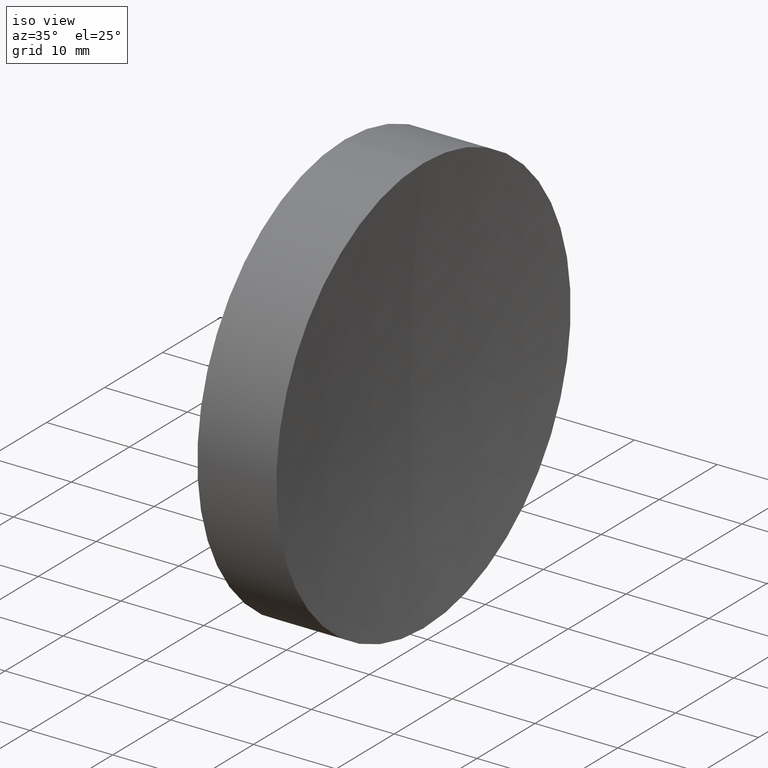
[diagram: clean part render]
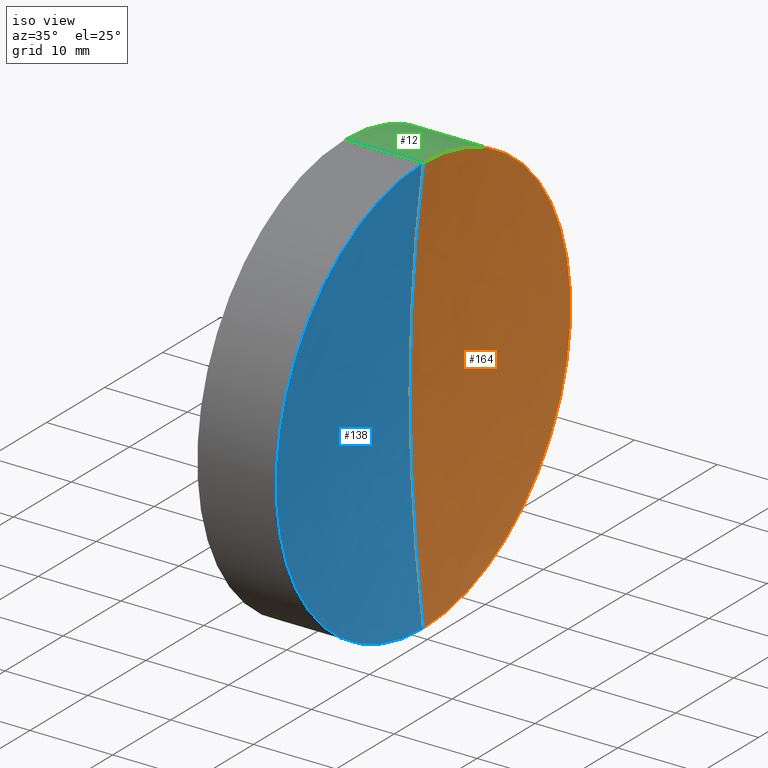
[diagram: same view with three faces highlighted in distinct colors, each labeled with its STEP entity id]
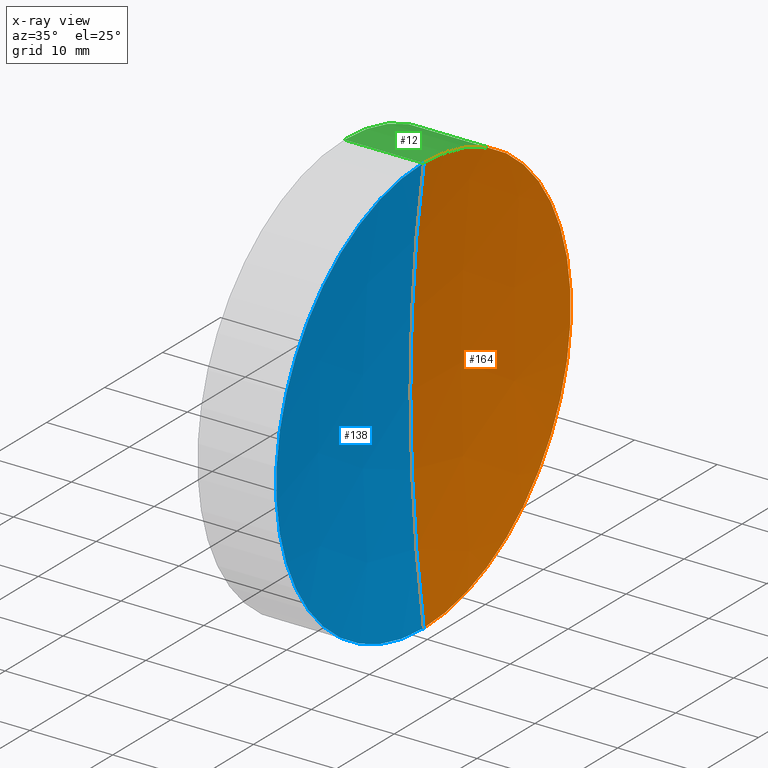
[diagram: x-ray of the same camera — body ghosted, the three highlighted faces saturated]
A machine part, iso view with three faces highlighted in distinct colors.
The next image is the same camera in x-ray (body ghosted, the three faces saturated) — at least one of them is partly hidden behind the body in this view.
Their STEP definitions:

[orange] entity #164 — the highlighted spherical surface has radius 200 mm.
#9 = ORIENTED_EDGE ( 'NONE', *, *, #137, .F. ) ;
#10 = EDGE_CURVE ( 'NONE', #37, #14, #76, .T. ) ;
#11 = DIRECTION ( 'NONE',  ( 0.0000000000000000000, -1.000000000000000000, 0.0000000000000000000 ) ) ;
#14 = VERTEX_POINT ( 'NONE', #104 ) ;
#22 = CIRCLE ( 'NONE', #149, 200.0000000000000000 ) ;
#32 = DIRECTION ( 'NONE',  ( -1.000000000000000000, -0.0000000000000000000, -0.0000000000000000000 ) ) ;
#34 = CARTESIAN_POINT ( 'NONE',  ( 207.9100000000000300, 0.0000000000000000000, 0.0000000000000000000 ) ) ;
#36 = DIRECTION ( 'NONE',  ( 0.0000000000000000000, 1.000000000000000000, 0.0000000000000000000 ) ) ;
#37 = VERTEX_POINT ( 'NONE', #95 ) ;
#41 = CARTESIAN_POINT ( 'NONE',  ( 207.9100000000000300, 0.0000000000000000000, 0.0000000000000000000 ) ) ;
#53 = DIRECTION ( 'NONE',  ( -0.0000000000000000000, 1.000000000000000000, 1.224646799147353200E-016 ) ) ;
#61 = DIRECTION ( 'NONE',  ( 0.0000000000000000000, 0.0000000000000000000, 1.000000000000000000 ) ) ;
#67 = DIRECTION ( 'NONE',  ( 0.0000000000000000000, -1.224646799147353200E-016, 1.000000000000000000 ) ) ;
#70 = AXIS2_PLACEMENT_3D ( 'NONE', #136, #36, #96 ) ;
#76 = CIRCLE ( 'NONE', #114, 200.0000000000000000 ) ;
#80 = ORIENTED_EDGE ( 'NONE', *, *, #153, .F. ) ;
#82 = ORIENTED_EDGE ( 'NONE', *, *, #10, .T. ) ;
#83 = AXIS2_PLACEMENT_3D ( 'NONE', #119, #32, #61 ) ;
#84 = FACE_OUTER_BOUND ( 'NONE', #132, .T. ) ;
#85 = SPHERICAL_SURFACE ( 'NONE', #70, 200.0000000000000000 ) ;
#91 = CARTESIAN_POINT ( 'NONE',  ( 9.529456599191659500, 3.110602869834278400E-015, -25.40000000000001300 ) ) ;
#95 = CARTESIAN_POINT ( 'NONE',  ( 9.529456599191659500, 0.0000000000000000000, 25.40000000000001300 ) ) ;
#96 = DIRECTION ( 'NONE',  ( 0.0000000000000000000, 0.0000000000000000000, 1.000000000000000000 ) ) ;
#104 = CARTESIAN_POINT ( 'NONE',  ( 7.910000000000000100, 0.0000000000000000000, 1.224646799147353200E-014 ) ) ;
#108 = DIRECTION ( 'NONE',  ( 0.0000000000000000000, 0.0000000000000000000, -1.000000000000000000 ) ) ;
#114 = AXIS2_PLACEMENT_3D ( 'NONE', #41, #11, #108 ) ;
#119 = CARTESIAN_POINT ( 'NONE',  ( 9.529456599191659500, 0.0000000000000000000, 0.0000000000000000000 ) ) ;
#132 = EDGE_LOOP ( 'NONE', ( #80, #9, #82 ) ) ;
#136 = CARTESIAN_POINT ( 'NONE',  ( 207.9100000000000300, 0.0000000000000000000, 0.0000000000000000000 ) ) ;
#137 = EDGE_CURVE ( 'NONE', #37, #155, #140, .T. ) ;
#140 = CIRCLE ( 'NONE', #83, 25.40000000000004800 ) ;
#149 = AXIS2_PLACEMENT_3D ( 'NONE', #34, #53, #67 ) ;
#153 = EDGE_CURVE ( 'NONE', #155, #14, #22, .T. ) ;
#155 = VERTEX_POINT ( 'NONE', #91 ) ;
#164 = ADVANCED_FACE ( 'NONE', ( #84 ), #85, .F. ) ;

[blue] entity #138 — the highlighted spherical surface has radius 200 mm.
#1 = CIRCLE ( 'NONE', #58, 25.40000000000004800 ) ;
#3 = ORIENTED_EDGE ( 'NONE', *, *, #10, .F. ) ;
#10 = EDGE_CURVE ( 'NONE', #37, #14, #76, .T. ) ;
#11 = DIRECTION ( 'NONE',  ( 0.0000000000000000000, -1.000000000000000000, 0.0000000000000000000 ) ) ;
#14 = VERTEX_POINT ( 'NONE', #104 ) ;
#19 = CARTESIAN_POINT ( 'NONE',  ( 9.529456599191659500, 0.0000000000000000000, 0.0000000000000000000 ) ) ;
#20 = DIRECTION ( 'NONE',  ( 0.0000000000000000000, 1.000000000000000000, 0.0000000000000000000 ) ) ;
#22 = CIRCLE ( 'NONE', #149, 200.0000000000000000 ) ;
#34 = CARTESIAN_POINT ( 'NONE',  ( 207.9100000000000300, 0.0000000000000000000, 0.0000000000000000000 ) ) ;
#37 = VERTEX_POINT ( 'NONE', #95 ) ;
#41 = CARTESIAN_POINT ( 'NONE',  ( 207.9100000000000300, 0.0000000000000000000, 0.0000000000000000000 ) ) ;
#44 = ORIENTED_EDGE ( 'NONE', *, *, #166, .F. ) ;
#53 = DIRECTION ( 'NONE',  ( -0.0000000000000000000, 1.000000000000000000, 1.224646799147353200E-016 ) ) ;
#58 = AXIS2_PLACEMENT_3D ( 'NONE', #19, #87, #160 ) ;
#59 = FACE_OUTER_BOUND ( 'NONE', #107, .T. ) ;
#67 = DIRECTION ( 'NONE',  ( 0.0000000000000000000, -1.224646799147353200E-016, 1.000000000000000000 ) ) ;
#74 = CARTESIAN_POINT ( 'NONE',  ( 207.9100000000000300, 0.0000000000000000000, 0.0000000000000000000 ) ) ;
#76 = CIRCLE ( 'NONE', #114, 200.0000000000000000 ) ;
#87 = DIRECTION ( 'NONE',  ( -1.000000000000000000, -0.0000000000000000000, -0.0000000000000000000 ) ) ;
#91 = CARTESIAN_POINT ( 'NONE',  ( 9.529456599191659500, 3.110602869834278400E-015, -25.40000000000001300 ) ) ;
#95 = CARTESIAN_POINT ( 'NONE',  ( 9.529456599191659500, 0.0000000000000000000, 25.40000000000001300 ) ) ;
#104 = CARTESIAN_POINT ( 'NONE',  ( 7.910000000000000100, 0.0000000000000000000, 1.224646799147353200E-014 ) ) ;
#107 = EDGE_LOOP ( 'NONE', ( #44, #147, #3 ) ) ;
#108 = DIRECTION ( 'NONE',  ( 0.0000000000000000000, 0.0000000000000000000, -1.000000000000000000 ) ) ;
#114 = AXIS2_PLACEMENT_3D ( 'NONE', #41, #11, #108 ) ;
#116 = SPHERICAL_SURFACE ( 'NONE', #126, 200.0000000000000000 ) ;
#126 = AXIS2_PLACEMENT_3D ( 'NONE', #74, #20, #152 ) ;
#138 = ADVANCED_FACE ( 'NONE', ( #59 ), #116, .F. ) ;
#147 = ORIENTED_EDGE ( 'NONE', *, *, #153, .T. ) ;
#149 = AXIS2_PLACEMENT_3D ( 'NONE', #34, #53, #67 ) ;
#152 = DIRECTION ( 'NONE',  ( 0.0000000000000000000, 0.0000000000000000000, 1.000000000000000000 ) ) ;
#153 = EDGE_CURVE ( 'NONE', #155, #14, #22, .T. ) ;
#155 = VERTEX_POINT ( 'NONE', #91 ) ;
#160 = DIRECTION ( 'NONE',  ( 0.0000000000000000000, 0.0000000000000000000, 1.000000000000000000 ) ) ;
#166 = EDGE_CURVE ( 'NONE', #155, #37, #1, .T. ) ;

[green] entity #12 — the highlighted cylindrical surface (partial cylindrical patch) has radius 25.4 mm, axis along (-1, -0, -0).
#7 = DIRECTION ( 'NONE',  ( -1.000000000000000000, -0.0000000000000000000, -0.0000000000000000000 ) ) ;
#8 = CARTESIAN_POINT ( 'NONE',  ( 0.0000000000000000000, 0.0000000000000000000, 25.39999999999999900 ) ) ;
#12 = ADVANCED_FACE ( 'NONE', ( #15 ), #25, .T. ) ;
#15 = FACE_OUTER_BOUND ( 'NONE', #40, .T. ) ;
#16 = ORIENTED_EDGE ( 'NONE', *, *, #146, .F. ) ;
#21 = DIRECTION ( 'NONE',  ( 0.0000000000000000000, 0.0000000000000000000, 1.000000000000000000 ) ) ;
#25 = CYLINDRICAL_SURFACE ( 'NONE', #101, 25.40000000000002300 ) ;
#32 = DIRECTION ( 'NONE',  ( -1.000000000000000000, -0.0000000000000000000, -0.0000000000000000000 ) ) ;
#37 = VERTEX_POINT ( 'NONE', #95 ) ;
#39 = CIRCLE ( 'NONE', #103, 25.39999999999999900 ) ;
#40 = EDGE_LOOP ( 'NONE', ( #141, #69, #16, #129 ) ) ;
#49 = VERTEX_POINT ( 'NONE', #52 ) ;
#51 = LINE ( 'NONE', #122, #78 ) ;
#52 = CARTESIAN_POINT ( 'NONE',  ( 0.0000000000000000000, 3.110602869834278400E-015, -25.39999999999999900 ) ) ;
#61 = DIRECTION ( 'NONE',  ( 0.0000000000000000000, 0.0000000000000000000, 1.000000000000000000 ) ) ;
#65 = VECTOR ( 'NONE', #88, 1000.000000000000000 ) ;
#69 = ORIENTED_EDGE ( 'NONE', *, *, #142, .T. ) ;
#78 = VECTOR ( 'NONE', #7, 1000.000000000000000 ) ;
#81 = CARTESIAN_POINT ( 'NONE',  ( 0.0000000000000000000, 0.0000000000000000000, 0.0000000000000000000 ) ) ;
#83 = AXIS2_PLACEMENT_3D ( 'NONE', #119, #32, #61 ) ;
#88 = DIRECTION ( 'NONE',  ( -1.000000000000000000, -0.0000000000000000000, -0.0000000000000000000 ) ) ;
#91 = CARTESIAN_POINT ( 'NONE',  ( 9.529456599191659500, 3.110602869834278400E-015, -25.40000000000001300 ) ) ;
#95 = CARTESIAN_POINT ( 'NONE',  ( 9.529456599191659500, 0.0000000000000000000, 25.40000000000001300 ) ) ;
#101 = AXIS2_PLACEMENT_3D ( 'NONE', #81, #128, #131 ) ;
#102 = CARTESIAN_POINT ( 'NONE',  ( 0.0000000000000000000, 0.0000000000000000000, 0.0000000000000000000 ) ) ;
#103 = AXIS2_PLACEMENT_3D ( 'NONE', #102, #121, #21 ) ;
#112 = LINE ( 'NONE', #162, #65 ) ;
#119 = CARTESIAN_POINT ( 'NONE',  ( 9.529456599191659500, 0.0000000000000000000, 0.0000000000000000000 ) ) ;
#121 = DIRECTION ( 'NONE',  ( -1.000000000000000000, -0.0000000000000000000, -0.0000000000000000000 ) ) ;
#122 = CARTESIAN_POINT ( 'NONE',  ( 0.0000000000000000000, 3.110602869834280000E-015, -25.40000000000002300 ) ) ;
#127 = EDGE_CURVE ( 'NONE', #37, #151, #112, .T. ) ;
#128 = DIRECTION ( 'NONE',  ( -1.000000000000000000, -0.0000000000000000000, -0.0000000000000000000 ) ) ;
#129 = ORIENTED_EDGE ( 'NONE', *, *, #127, .F. ) ;
#131 = DIRECTION ( 'NONE',  ( 0.0000000000000000000, 0.0000000000000000000, 1.000000000000000000 ) ) ;
#137 = EDGE_CURVE ( 'NONE', #37, #155, #140, .T. ) ;
#140 = CIRCLE ( 'NONE', #83, 25.40000000000004800 ) ;
#141 = ORIENTED_EDGE ( 'NONE', *, *, #137, .T. ) ;
#142 = EDGE_CURVE ( 'NONE', #155, #49, #51, .T. ) ;
#146 = EDGE_CURVE ( 'NONE', #151, #49, #39, .T. ) ;
#151 = VERTEX_POINT ( 'NONE', #8 ) ;
#155 = VERTEX_POINT ( 'NONE', #91 ) ;
#162 = CARTESIAN_POINT ( 'NONE',  ( 0.0000000000000000000, 0.0000000000000000000, 25.40000000000002300 ) ) ;